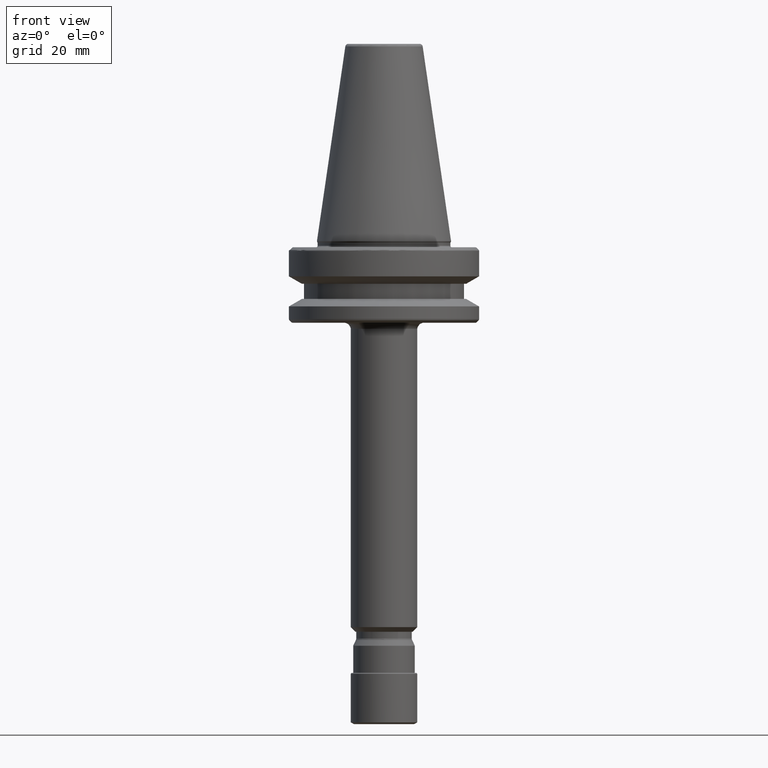
[diagram: clean part render]
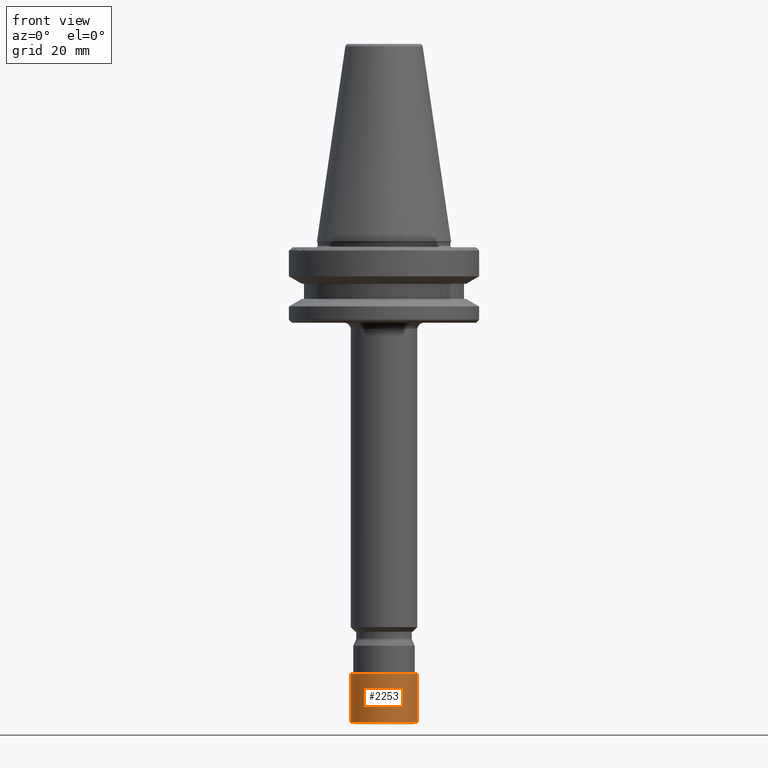
[diagram: same view with one face highlighted and labeled with its STEP entity id]
A machine part, front view. The second image highlights one B-rep face of the part: STEP entity #2253.
In plain terms, the highlighted cylindrical surface (edge-blend (fillet) strip) has radius 11 mm, axis along (0, -0, 1).
Its self-contained STEP definition (entity closure, byte-faithful):
#27 = CARTESIAN_POINT ( 'NONE',  ( -11.00000000000000000, 1.347111479062088400E-015, -159.4226497310000100 ) ) ;
#43 = VERTEX_POINT ( 'NONE', #3422 ) ;
#160 = CARTESIAN_POINT ( 'NONE',  ( 0.0000000000000000000, 0.0000000000000000000, -159.4226497310000100 ) ) ;
#182 = VERTEX_POINT ( 'NONE', #707 ) ;
#257 = DIRECTION ( 'NONE',  ( 1.000000000000000000, 0.0000000000000000000, 0.0000000000000000000 ) ) ;
#310 = AXIS2_PLACEMENT_3D ( 'NONE', #160, #2441, #1102 ) ;
#377 = CYLINDRICAL_SURFACE ( 'NONE', #2630, 11.00000000000000000 ) ;
#507 = DIRECTION ( 'NONE',  ( 0.0000000000000000000, -0.0000000000000000000, 1.000000000000000000 ) ) ;
#592 = ORIENTED_EDGE ( 'NONE', *, *, #613, .F. ) ;
#613 = EDGE_CURVE ( 'NONE', #43, #182, #1549, .T. ) ;
#707 = CARTESIAN_POINT ( 'NONE',  ( 0.0000000000000000000, -11.00000000000005200, -159.4226497310000100 ) ) ;
#709 = VERTEX_POINT ( 'NONE', #2911 ) ;
#777 = AXIS2_PLACEMENT_3D ( 'NONE', #3554, #1980, #257 ) ;
#813 = CARTESIAN_POINT ( 'NONE',  ( 10.99999999994462700, 1.347111479055307400E-015, -143.4000000000000100 ) ) ;
#851 = EDGE_CURVE ( 'NONE', #709, #2261, #1630, .T. ) ;
#1044 = FACE_OUTER_BOUND ( 'NONE', #1919, .T. ) ;
#1047 = VERTEX_POINT ( 'NONE', #3079 ) ;
#1102 = DIRECTION ( 'NONE',  ( 1.000000000000000000, 0.0000000000000000000, 0.0000000000000000000 ) ) ;
#1246 = EDGE_CURVE ( 'NONE', #43, #2261, #2293, .T. ) ;
#1418 = ORIENTED_EDGE ( 'NONE', *, *, #1246, .T. ) ;
#1466 = EDGE_CURVE ( 'NONE', #182, #1047, #2327, .T. ) ;
#1549 = CIRCLE ( 'NONE', #2560, 11.00000000000000000 ) ;
#1591 = ORIENTED_EDGE ( 'NONE', *, *, #2491, .F. ) ;
#1630 = CIRCLE ( 'NONE', #777, 11.00000000000000000 ) ;
#1791 = DIRECTION ( 'NONE',  ( -0.0000000000000000000, -0.0000000000000000000, -1.000000000000000000 ) ) ;
#1886 = DIRECTION ( 'NONE',  ( 0.0000000000000000000, -0.0000000000000000000, 1.000000000000000000 ) ) ;
#1919 = EDGE_LOOP ( 'NONE', ( #1591, #1957, #592, #1418, #2659 ) ) ;
#1957 = ORIENTED_EDGE ( 'NONE', *, *, #1466, .F. ) ;
#1980 = DIRECTION ( 'NONE',  ( 0.0000000000000000000, 0.0000000000000000000, 1.000000000000000000 ) ) ;
#1984 = CARTESIAN_POINT ( 'NONE',  ( 0.0000000000000000000, 0.0000000000000000000, -159.4226497310000100 ) ) ;
#2048 = LINE ( 'NONE', #27, #2216 ) ;
#2170 = VECTOR ( 'NONE', #1886, 1000.000000000000000 ) ;
#2216 = VECTOR ( 'NONE', #2563, 1000.000000000000000 ) ;
#2253 = ADVANCED_FACE ( 'NONE', ( #1044 ), #377, .T. ) ;
#2261 = VERTEX_POINT ( 'NONE', #813 ) ;
#2270 = DIRECTION ( 'NONE',  ( 1.000000000000000000, 0.0000000000000000000, 0.0000000000000000000 ) ) ;
#2293 = LINE ( 'NONE', #3470, #2170 ) ;
#2327 = CIRCLE ( 'NONE', #310, 11.00000000000000000 ) ;
#2441 = DIRECTION ( 'NONE',  ( -0.0000000000000000000, -0.0000000000000000000, -1.000000000000000000 ) ) ;
#2491 = EDGE_CURVE ( 'NONE', #1047, #709, #2048, .T. ) ;
#2560 = AXIS2_PLACEMENT_3D ( 'NONE', #1984, #1791, #2605 ) ;
#2563 = DIRECTION ( 'NONE',  ( 0.0000000000000000000, -0.0000000000000000000, 1.000000000000000000 ) ) ;
#2605 = DIRECTION ( 'NONE',  ( 1.000000000000000000, 0.0000000000000000000, 0.0000000000000000000 ) ) ;
#2630 = AXIS2_PLACEMENT_3D ( 'NONE', #2961, #507, #2270 ) ;
#2659 = ORIENTED_EDGE ( 'NONE', *, *, #851, .F. ) ;
#2911 = CARTESIAN_POINT ( 'NONE',  ( -10.99999999994462700, 0.0000000000000000000, -143.4000000000000100 ) ) ;
#2961 = CARTESIAN_POINT ( 'NONE',  ( 0.0000000000000000000, 0.0000000000000000000, -159.4226497310000100 ) ) ;
#3079 = CARTESIAN_POINT ( 'NONE',  ( -11.00000000000000000, 1.347111479062088400E-015, -159.4226497310000100 ) ) ;
#3422 = CARTESIAN_POINT ( 'NONE',  ( 11.00000000000000000, 0.0000000000000000000, -159.4226497310000100 ) ) ;
#3470 = CARTESIAN_POINT ( 'NONE',  ( 11.00000000000000000, 0.0000000000000000000, -159.4226497310000100 ) ) ;
#3554 = CARTESIAN_POINT ( 'NONE',  ( 0.0000000000000000000, 0.0000000000000000000, -143.4000000000000100 ) ) ;